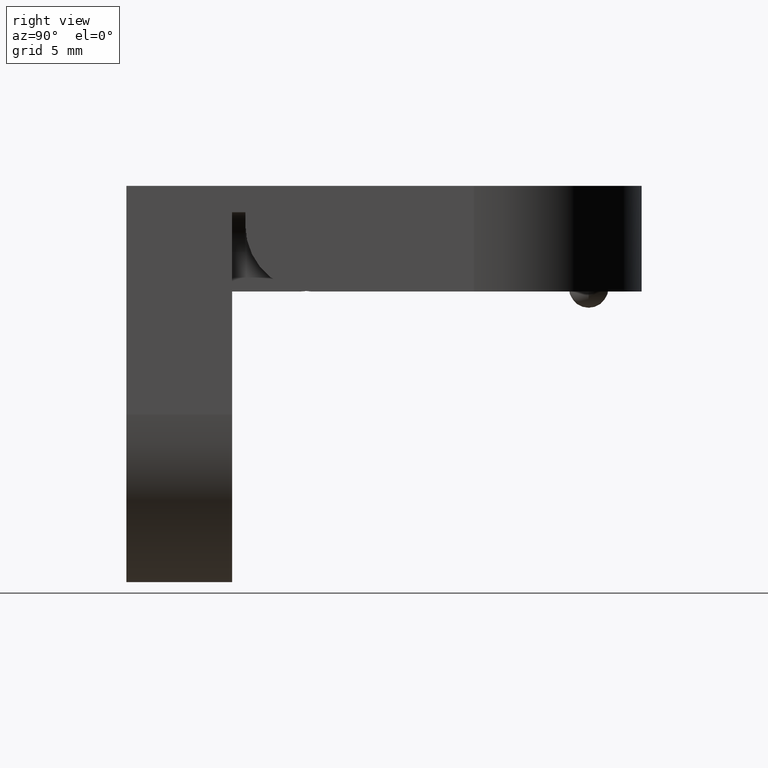
[diagram: clean part render]
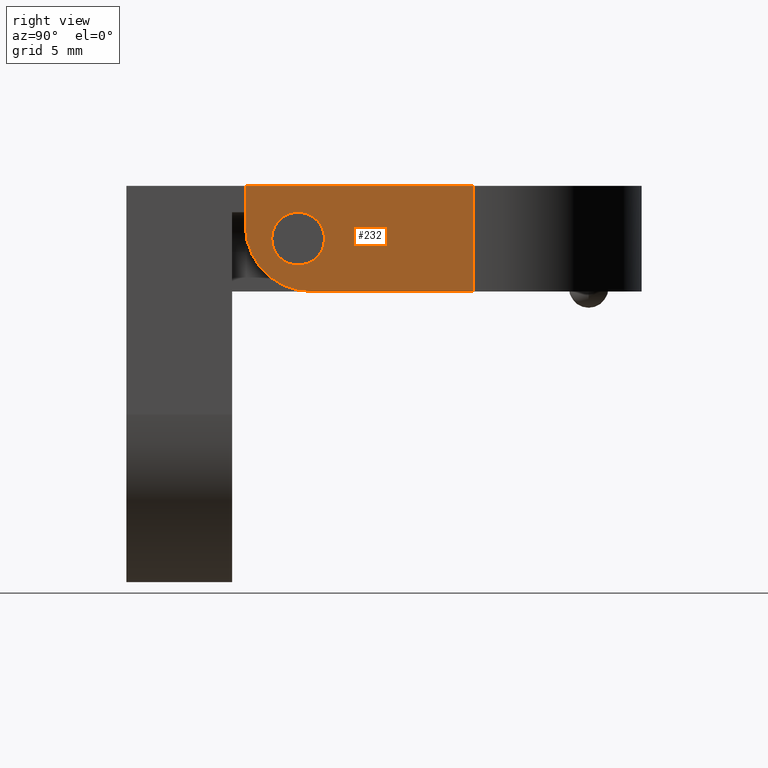
[diagram: same view with one face highlighted and labeled with its STEP entity id]
A machine part, right view. The second image highlights one B-rep face of the part: STEP entity #232.
In plain terms, the highlighted planar face has unit normal (-1, 0, 0).
Its self-contained STEP definition (entity closure, byte-faithful):
#25 = DIRECTION ( 'NONE',  ( -1.000000000000000000, 3.398071131305393000E-019, 1.734720147809983500E-016 ) ) ;
#43 = CARTESIAN_POINT ( 'NONE',  ( 12.70000000000001900, 26.29999999999999000, 0.0000000000000000000 ) ) ;
#162 = DIRECTION ( 'NONE',  ( 5.816392297902412600E-017, 1.000000000000000000, 2.006173176437289900E-032 ) ) ;
#208 = VERTEX_POINT ( 'NONE', #311 ) ;
#232 = ADVANCED_FACE ( 'NONE', ( #1485, #2006 ), #556, .F. ) ;
#282 = EDGE_LOOP ( 'NONE', ( #325, #361 ) ) ;
#311 = CARTESIAN_POINT ( 'NONE',  ( 12.70000000000002200, 14.99999999999999600, -4.000000000000000000 ) ) ;
#313 = CARTESIAN_POINT ( 'NONE',  ( 12.70000000000001900, 38.99999999999999300, 0.0000000000000000000 ) ) ;
#325 = ORIENTED_EDGE ( 'NONE', *, *, #1983, .T. ) ;
#347 = CIRCLE ( 'NONE', #548, 5.000000000000000900 ) ;
#361 = ORIENTED_EDGE ( 'NONE', *, *, #2793, .T. ) ;
#395 = CARTESIAN_POINT ( 'NONE',  ( 12.70000000000002200, 13.00000000000000200, -4.000000000000000900 ) ) ;
#433 = ORIENTED_EDGE ( 'NONE', *, *, #2366, .T. ) ;
#499 = EDGE_CURVE ( 'NONE', #1451, #2336, #347, .T. ) ;
#506 = VECTOR ( 'NONE', #1680, 1000.000000000000000 ) ;
#548 = AXIS2_PLACEMENT_3D ( 'NONE', #2757, #2512, #2537 ) ;
#556 = PLANE ( 'NONE',  #2226 ) ;
#557 = VERTEX_POINT ( 'NONE', #2450 ) ;
#609 = DIRECTION ( 'NONE',  ( 0.0000000000000000000, -1.000000000000000000, 0.0000000000000000000 ) ) ;
#663 = EDGE_CURVE ( 'NONE', #1734, #1451, #960, .T. ) ;
#666 = ORIENTED_EDGE ( 'NONE', *, *, #1348, .T. ) ;
#761 = CARTESIAN_POINT ( 'NONE',  ( 12.70000000000001900, 38.99999999999999300, 0.0000000000000000000 ) ) ;
#856 = CIRCLE ( 'NONE', #2332, 1.999999999999994900 ) ;
#880 = ORIENTED_EDGE ( 'NONE', *, *, #2679, .F. ) ;
#904 = VECTOR ( 'NONE', #1717, 1000.000000000000000 ) ;
#945 = ORIENTED_EDGE ( 'NONE', *, *, #663, .T. ) ;
#960 = LINE ( 'NONE', #1353, #904 ) ;
#978 = VERTEX_POINT ( 'NONE', #1979 ) ;
#1003 = ORIENTED_EDGE ( 'NONE', *, *, #499, .T. ) ;
#1089 = VECTOR ( 'NONE', #1854, 1000.000000000000000 ) ;
#1096 = LINE ( 'NONE', #1741, #506 ) ;
#1235 = CARTESIAN_POINT ( 'NONE',  ( 12.70000000000001500, 8.999999999999992900, -3.000000000000000900 ) ) ;
#1333 = CARTESIAN_POINT ( 'NONE',  ( 12.70000000000002200, 13.00000000000000200, -4.000000000000000900 ) ) ;
#1335 = VECTOR ( 'NONE', #162, 1000.000000000000000 ) ;
#1348 = EDGE_CURVE ( 'NONE', #557, #2072, #1096, .T. ) ;
#1353 = CARTESIAN_POINT ( 'NONE',  ( 12.70000000000001700, 8.999999999999992900, 0.0000000000000000000 ) ) ;
#1451 = VERTEX_POINT ( 'NONE', #1235 ) ;
#1485 = FACE_BOUND ( 'NONE', #282, .T. ) ;
#1541 = DIRECTION ( 'NONE',  ( 0.0000000000000000000, -1.000000000000000000, 0.0000000000000000000 ) ) ;
#1603 = AXIS2_PLACEMENT_3D ( 'NONE', #1333, #25, #1541 ) ;
#1680 = DIRECTION ( 'NONE',  ( 1.734720147809983000E-016, 0.0000000000000000000, 1.000000000000000000 ) ) ;
#1717 = DIRECTION ( 'NONE',  ( -1.734720147809983000E-016, 0.0000000000000000000, -1.000000000000000000 ) ) ;
#1734 = VERTEX_POINT ( 'NONE', #2855 ) ;
#1741 = CARTESIAN_POINT ( 'NONE',  ( 12.70000000000001900, 26.29999999999999000, 0.0000000000000000000 ) ) ;
#1854 = DIRECTION ( 'NONE',  ( 5.816392297902412600E-017, 1.000000000000000000, 2.006173176437289900E-032 ) ) ;
#1908 = LINE ( 'NONE', #2333, #1335 ) ;
#1917 = DIRECTION ( 'NONE',  ( -1.000000000000000000, 3.398071131305393000E-019, 1.734720147809983500E-016 ) ) ;
#1979 = CARTESIAN_POINT ( 'NONE',  ( 12.70000000000002200, 11.00000000000000700, -4.000000000000000900 ) ) ;
#1983 = EDGE_CURVE ( 'NONE', #978, #208, #2694, .T. ) ;
#2006 = FACE_OUTER_BOUND ( 'NONE', #2744, .T. ) ;
#2072 = VERTEX_POINT ( 'NONE', #43 ) ;
#2226 = AXIS2_PLACEMENT_3D ( 'NONE', #761, #2500, #2288 ) ;
#2242 = LINE ( 'NONE', #313, #1089 ) ;
#2288 = DIRECTION ( 'NONE',  ( -5.816392297902412600E-017, -1.000000000000000000, -2.006173176437289900E-032 ) ) ;
#2324 = CARTESIAN_POINT ( 'NONE',  ( 12.70000000000001700, 13.99999999999999100, -8.000000000000000000 ) ) ;
#2332 = AXIS2_PLACEMENT_3D ( 'NONE', #395, #1917, #609 ) ;
#2333 = CARTESIAN_POINT ( 'NONE',  ( 12.70000000000001700, 38.99999999999999300, -8.000000000000000000 ) ) ;
#2336 = VERTEX_POINT ( 'NONE', #2324 ) ;
#2366 = EDGE_CURVE ( 'NONE', #2336, #557, #1908, .T. ) ;
#2450 = CARTESIAN_POINT ( 'NONE',  ( 12.70000000000001700, 26.29999999999999000, -8.000000000000000000 ) ) ;
#2500 = DIRECTION ( 'NONE',  ( -1.000000000000000000, 5.816392297902412600E-017, 1.734720147809983500E-016 ) ) ;
#2512 = DIRECTION ( 'NONE',  ( 1.000000000000000000, -5.816392297902410100E-017, -1.734720147809983500E-016 ) ) ;
#2537 = DIRECTION ( 'NONE',  ( 0.0000000000000000000, -1.000000000000000000, 0.0000000000000000000 ) ) ;
#2679 = EDGE_CURVE ( 'NONE', #1734, #2072, #2242, .T. ) ;
#2694 = CIRCLE ( 'NONE', #1603, 1.999999999999994900 ) ;
#2744 = EDGE_LOOP ( 'NONE', ( #433, #666, #880, #945, #1003 ) ) ;
#2757 = CARTESIAN_POINT ( 'NONE',  ( 12.70000000000001700, 13.99999999999999100, -3.000000000000000900 ) ) ;
#2793 = EDGE_CURVE ( 'NONE', #208, #978, #856, .T. ) ;
#2855 = CARTESIAN_POINT ( 'NONE',  ( 12.70000000000001700, 8.999999999999992900, 0.0000000000000000000 ) ) ;